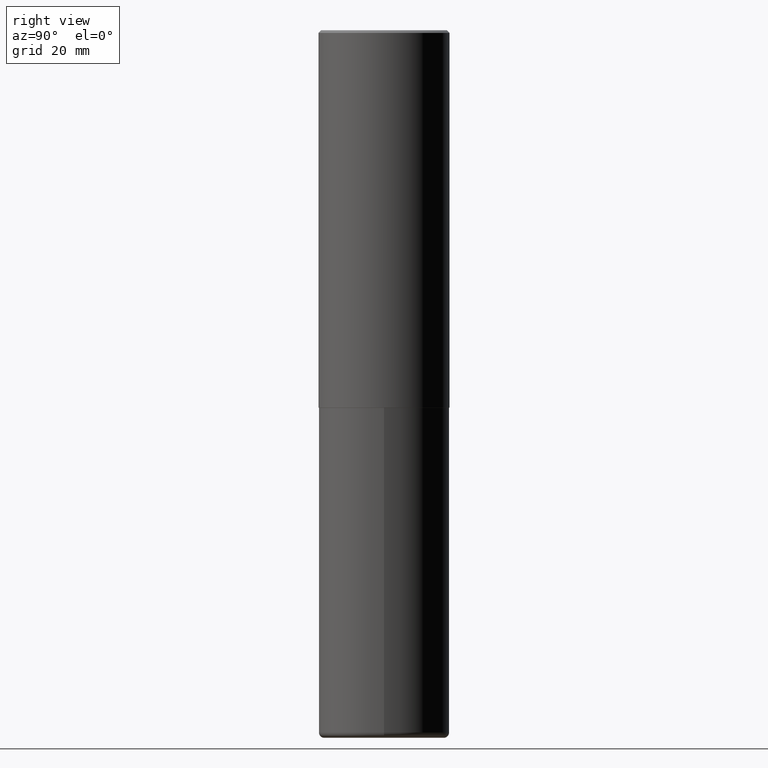
[diagram: clean part render]
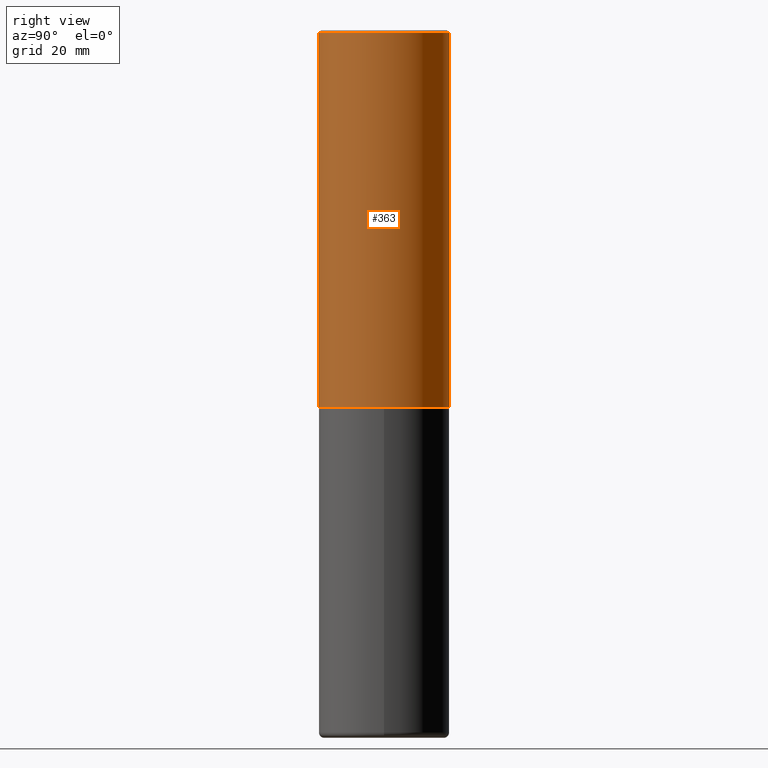
[diagram: same view with one face highlighted and labeled with its STEP entity id]
A machine part, right view. The second image highlights one B-rep face of the part: STEP entity #363.
In plain terms, the highlighted cylindrical surface (partial cylindrical patch) has radius 12.5006 mm, axis along (-0, 0, 1).
Its self-contained STEP definition (entity closure, byte-faithful):
#13 = DIRECTION ( 'NONE',  ( -6.982962677686265922E-15, -1.000000000000000000, 3.330506545156063891E-15 ) ) ;
#16 = EDGE_LOOP ( 'NONE', ( #203, #291, #311, #130 ) ) ;
#18 = VERTEX_POINT ( 'NONE', #94 ) ;
#28 = DIRECTION ( 'NONE',  ( -6.982962677686265922E-15, -1.000000000000000000, 3.495297233588267070E-15 ) ) ;
#46 = CARTESIAN_POINT ( 'NONE',  ( -3.436665081823297354E-15, -0.4921500000000001984, 1.718501431755139742E-15 ) ) ;
#64 = CARTESIAN_POINT ( 'NONE',  ( -3.436665081823228329E-15, -0.4921500000000101904, -2.833699999999998997 ) ) ;
#74 = VERTEX_POINT ( 'NONE', #64 ) ;
#84 = CIRCLE ( 'NONE', #217, 0.4921500000000000319 ) ;
#94 = CARTESIAN_POINT ( 'NONE',  ( 3.436665081823296565E-15, 0.4921499999999999764, -0.02000000000000182535 ) ) ;
#103 = CARTESIAN_POINT ( 'NONE',  ( 6.929045905378983914E-29, -9.894783109142616722E-15, -2.833700000000000330 ) ) ;
#120 = AXIS2_PLACEMENT_3D ( 'NONE', #220, #180, #257 ) ;
#121 = EDGE_CURVE ( 'NONE', #74, #251, #302, .T. ) ;
#130 = ORIENTED_EDGE ( 'NONE', *, *, #121, .F. ) ;
#146 = EDGE_CURVE ( 'NONE', #244, #18, #271, .T. ) ;
#152 = EDGE_CURVE ( 'NONE', #74, #244, #182, .T. ) ;
#164 = DIRECTION ( 'NONE',  ( -2.445229172240879899E-29, 3.491824508290438613E-15, 1.000000000000000000 ) ) ;
#171 = DIRECTION ( 'NONE',  ( -2.445229172240879899E-29, 3.491824508290438219E-15, 1.000000000000000000 ) ) ;
#180 = DIRECTION ( 'NONE',  ( -2.445229172240879899E-29, 3.491824508290438219E-15, 1.000000000000000000 ) ) ;
#182 = CIRCLE ( 'NONE', #248, 0.4921500000000003094 ) ;
#186 = CARTESIAN_POINT ( 'NONE',  ( 4.890458344481786073E-31, -6.983649016580912824E-17, -0.02000000000000010797 ) ) ;
#192 = CARTESIAN_POINT ( 'NONE',  ( -3.376394089603258656E-15, -0.4921500000000000874, -0.01999999999999838712 ) ) ;
#203 = ORIENTED_EDGE ( 'NONE', *, *, #152, .T. ) ;
#217 = AXIS2_PLACEMENT_3D ( 'NONE', #186, #376, #28 ) ;
#220 = CARTESIAN_POINT ( 'NONE',  ( 0.000000000000000000, 0.000000000000000000, 0.000000000000000000 ) ) ;
#240 = VECTOR ( 'NONE', #164, 39.37007874015748143 ) ;
#244 = VERTEX_POINT ( 'NONE', #412 ) ;
#248 = AXIS2_PLACEMENT_3D ( 'NONE', #103, #171, #13 ) ;
#250 = FACE_OUTER_BOUND ( 'NONE', #16, .T. ) ;
#251 = VERTEX_POINT ( 'NONE', #192 ) ;
#257 = DIRECTION ( 'NONE',  ( -6.982962677686266711E-15, -1.000000000000000000, 3.491824508290437824E-15 ) ) ;
#270 = DIRECTION ( 'NONE',  ( -2.445229172240879899E-29, 3.491824508290438613E-15, 1.000000000000000000 ) ) ;
#271 = LINE ( 'NONE', #331, #240 ) ;
#291 = ORIENTED_EDGE ( 'NONE', *, *, #146, .T. ) ;
#302 = LINE ( 'NONE', #46, #323 ) ;
#311 = ORIENTED_EDGE ( 'NONE', *, *, #347, .F. ) ;
#323 = VECTOR ( 'NONE', #270, 39.37007874015748143 ) ;
#331 = CARTESIAN_POINT ( 'NONE',  ( 3.496936074043333686E-15, 0.4921500000000001984, -1.718501431755139742E-15 ) ) ;
#347 = EDGE_CURVE ( 'NONE', #251, #18, #84, .T. ) ;
#363 = ADVANCED_FACE ( 'NONE', ( #250 ), #407, .T. ) ;
#376 = DIRECTION ( 'NONE',  ( -2.445229172240879899E-29, 3.491824508290438219E-15, 1.000000000000000000 ) ) ;
#407 = CYLINDRICAL_SURFACE ( 'NONE', #120, 0.4921500000000001984 ) ;
#412 = CARTESIAN_POINT ( 'NONE',  ( 3.496936074043369579E-15, 0.4921499999999904840, -2.833700000000002106 ) ) ;